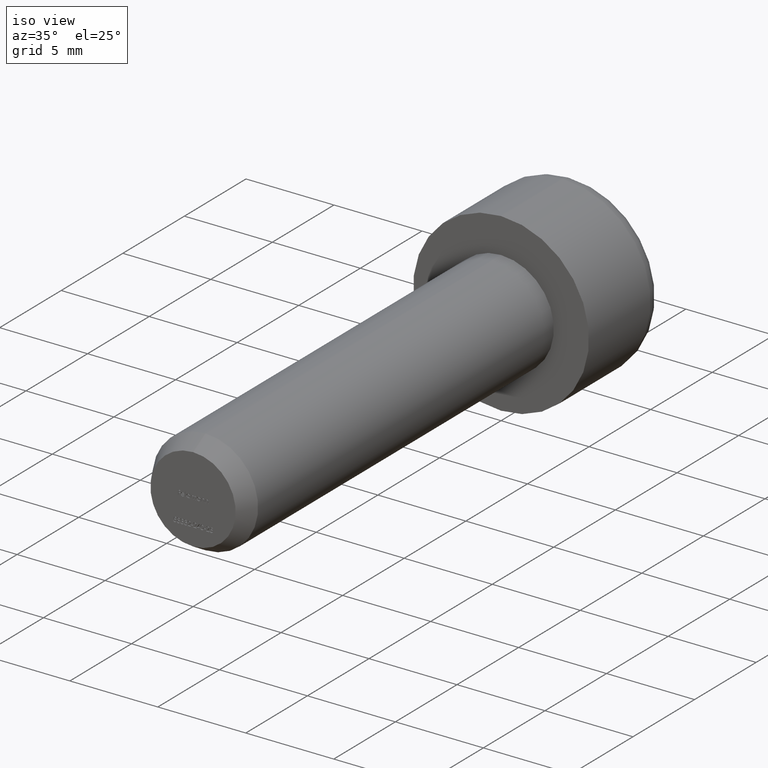
[diagram: clean part render]
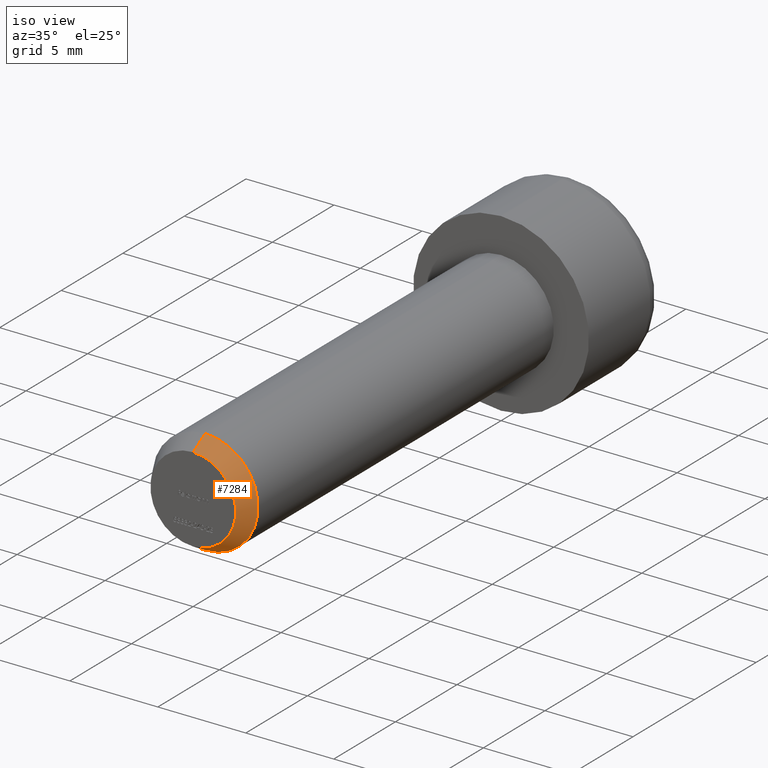
[diagram: same view with one face highlighted and labeled with its STEP entity id]
A machine part, iso view. The second image highlights one B-rep face of the part: STEP entity #7284.
In plain terms, the highlighted conical surface has half-angle 30 deg.
Its self-contained STEP definition (entity closure, byte-faithful):
#367 = ORIENTED_EDGE ( 'NONE', *, *, #15292, .F. ) ;
#744 = DIRECTION ( 'NONE',  ( 0.000000000000000000, 0.8660254037844387076, 0.4999999999999998335 ) ) ;
#1374 = EDGE_CURVE ( 'NONE', #18116, #3885, #11795, .T. ) ;
#2354 = ORIENTED_EDGE ( 'NONE', *, *, #13313, .F. ) ;
#2426 = CONICAL_SURFACE ( 'NONE', #15478, 2.422649730810376489, 0.5235987755982987046 ) ;
#2616 = VERTEX_POINT ( 'NONE', #18001 ) ;
#2949 = CARTESIAN_POINT ( 'NONE',  ( 3.673940397442060361E-16, -24.00000000000000355, -3.000000000000000444 ) ) ;
#2967 = VECTOR ( 'NONE', #18396, 1000.000000000000114 ) ;
#3375 = CARTESIAN_POINT ( 'NONE',  ( 0.000000000000000000, -25.00000000000000000, 2.422649730810376489 ) ) ;
#3527 = LINE ( 'NONE', #3375, #10770 ) ;
#3551 = AXIS2_PLACEMENT_3D ( 'NONE', #7022, #17060, #8466 ) ;
#3885 = VERTEX_POINT ( 'NONE', #2949 ) ;
#5809 = CIRCLE ( 'NONE', #3551, 2.422649730810376489 ) ;
#6343 = DIRECTION ( 'NONE',  ( 0.000000000000000000, 0.000000000000000000, -1.000000000000000000 ) ) ;
#6648 = CARTESIAN_POINT ( 'NONE',  ( 0.000000000000000000, -25.00000000000000000, 2.422649730810376489 ) ) ;
#7022 = CARTESIAN_POINT ( 'NONE',  ( 0.000000000000000000, -25.00000000000000000, 0.000000000000000000 ) ) ;
#7135 = EDGE_LOOP ( 'NONE', ( #2354, #10279, #367, #9633 ) ) ;
#7284 = ADVANCED_FACE ( 'NONE', ( #17751 ), #2426, .T. ) ;
#8466 = DIRECTION ( 'NONE',  ( 0.000000000000000000, 0.000000000000000000, -1.000000000000000000 ) ) ;
#8926 = AXIS2_PLACEMENT_3D ( 'NONE', #13367, #9132, #6343 ) ;
#9132 = DIRECTION ( 'NONE',  ( 0.000000000000000000, 1.000000000000000000, 0.000000000000000000 ) ) ;
#9338 = DIRECTION ( 'NONE',  ( 0.000000000000000000, 0.000000000000000000, 1.000000000000000000 ) ) ;
#9633 = ORIENTED_EDGE ( 'NONE', *, *, #13996, .F. ) ;
#10279 = ORIENTED_EDGE ( 'NONE', *, *, #1374, .T. ) ;
#10473 = VERTEX_POINT ( 'NONE', #6648 ) ;
#10728 = CIRCLE ( 'NONE', #8926, 3.000000000000000444 ) ;
#10770 = VECTOR ( 'NONE', #744, 1000.000000000000114 ) ;
#10999 = CARTESIAN_POINT ( 'NONE',  ( 2.966890238292124061E-16, -25.00000000000000000, -2.422649730810376489 ) ) ;
#11795 = LINE ( 'NONE', #10999, #2967 ) ;
#12132 = DIRECTION ( 'NONE',  ( 0.000000000000000000, 1.000000000000000000, 0.000000000000000000 ) ) ;
#13313 = EDGE_CURVE ( 'NONE', #18116, #10473, #5809, .T. ) ;
#13367 = CARTESIAN_POINT ( 'NONE',  ( 0.000000000000000000, -24.00000000000000355, 0.000000000000000000 ) ) ;
#13514 = CARTESIAN_POINT ( 'NONE',  ( 0.000000000000000000, -25.00000000000000000, 0.000000000000000000 ) ) ;
#13996 = EDGE_CURVE ( 'NONE', #10473, #2616, #3527, .T. ) ;
#14565 = CARTESIAN_POINT ( 'NONE',  ( 3.320415317867092458E-16, -25.00000000000000000, -2.422649730810376489 ) ) ;
#15292 = EDGE_CURVE ( 'NONE', #2616, #3885, #10728, .T. ) ;
#15478 = AXIS2_PLACEMENT_3D ( 'NONE', #13514, #12132, #9338 ) ;
#17060 = DIRECTION ( 'NONE',  ( 0.000000000000000000, -1.000000000000000000, 0.000000000000000000 ) ) ;
#17751 = FACE_OUTER_BOUND ( 'NONE', #7135, .T. ) ;
#18001 = CARTESIAN_POINT ( 'NONE',  ( 0.000000000000000000, -24.00000000000000355, 3.000000000000000444 ) ) ;
#18116 = VERTEX_POINT ( 'NONE', #14565 ) ;
#18396 = DIRECTION ( 'NONE',  ( 6.123233995736764803E-17, 0.8660254037844387076, -0.4999999999999998335 ) ) ;